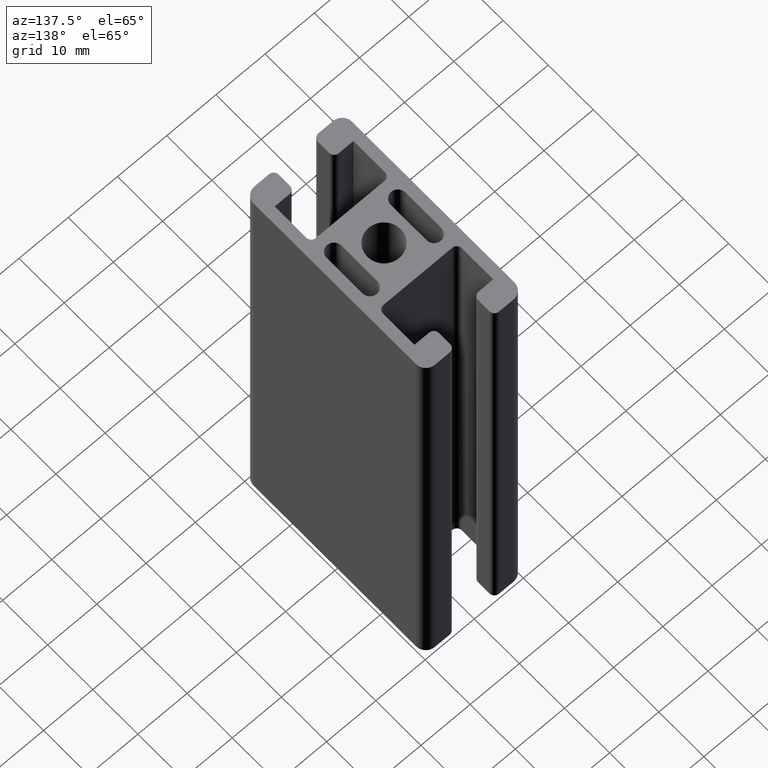
[diagram: clean part render]
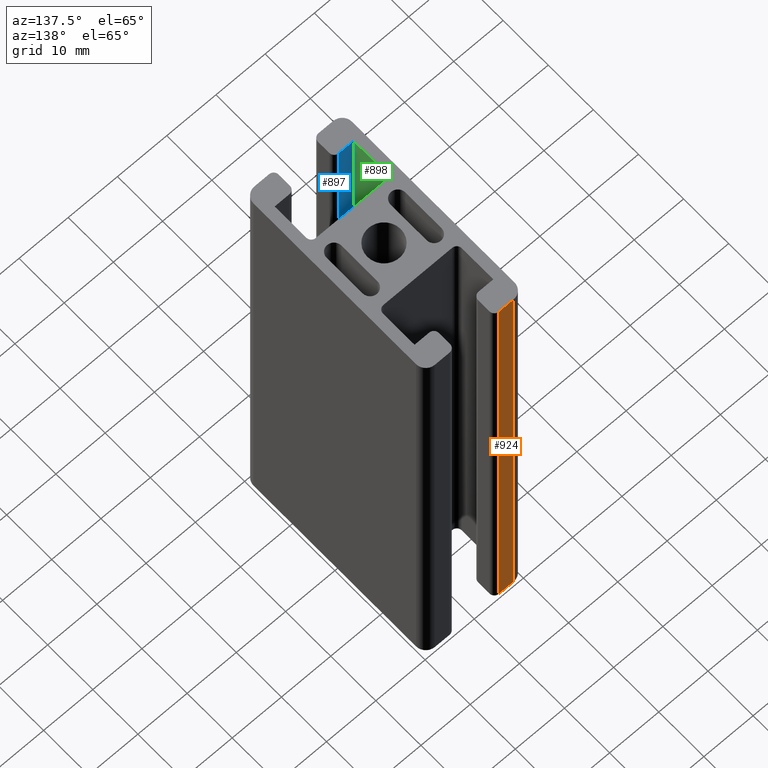
[diagram: same view with three faces highlighted in distinct colors, each labeled with its STEP entity id]
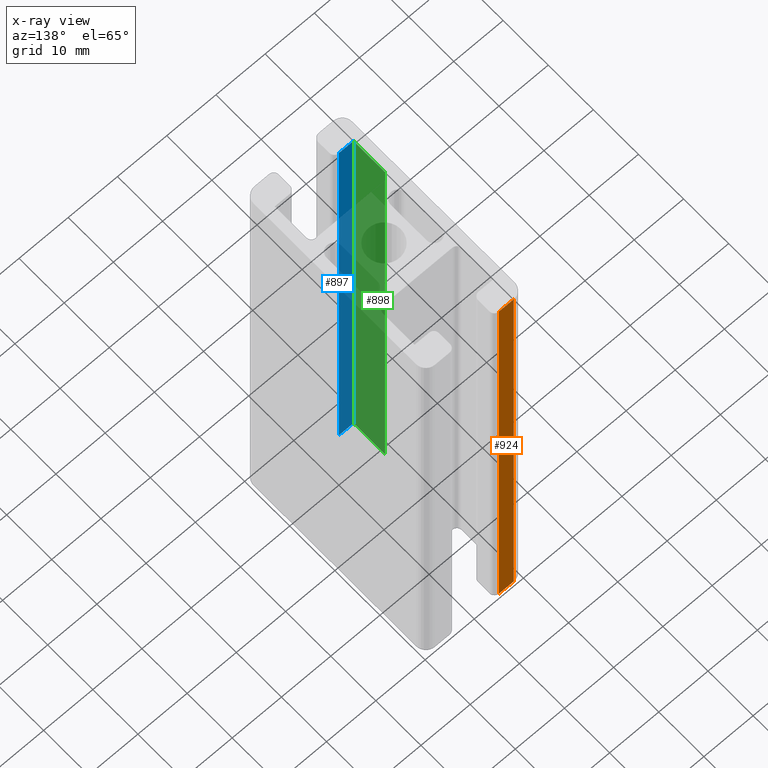
[diagram: x-ray of the same camera — body ghosted, the three highlighted faces saturated]
A machine part, auxiliary view with three faces highlighted in distinct colors.
The next image is the same camera in x-ray (body ghosted, the three faces saturated) — at least one of them is partly hidden behind the body in this view.
Their STEP definitions:

[orange] entity #924 — the highlighted planar face has unit normal (0, 1, 0).
#61=LINE('',#1444,#153);
#90=LINE('',#1522,#182);
#91=LINE('',#1524,#183);
#92=LINE('',#1525,#184);
#153=VECTOR('',#1168,100.);
#182=VECTOR('',#1245,3.00000199595298);
#183=VECTOR('',#1246,100.);
#184=VECTOR('',#1247,3.00000199595298);
#218=PLANE('',#1007);
#268=FACE_OUTER_BOUND('',#316,.T.);
#316=EDGE_LOOP('',(#741,#742,#743,#744));
#424=VERTEX_POINT('',#1438);
#426=VERTEX_POINT('',#1442);
#451=VERTEX_POINT('',#1521);
#452=VERTEX_POINT('',#1523);
#535=EDGE_CURVE('',#424,#426,#61,.T.);
#574=EDGE_CURVE('',#451,#426,#90,.T.);
#575=EDGE_CURVE('',#451,#452,#91,.T.);
#576=EDGE_CURVE('',#452,#424,#92,.T.);
#741=ORIENTED_EDGE('',*,*,#535,.T.);
#742=ORIENTED_EDGE('',*,*,#574,.F.);
#743=ORIENTED_EDGE('',*,*,#575,.T.);
#744=ORIENTED_EDGE('',*,*,#576,.T.);
#924=ADVANCED_FACE('',(#268),#218,.T.);
#1007=AXIS2_PLACEMENT_3D('',#1520,#1243,#1244);
#1168=DIRECTION('',(0.,0.,-1.));
#1243=DIRECTION('center_axis',(5.55111512312578E-16,1.,0.));
#1244=DIRECTION('ref_axis',(-1.,7.105427357601E-16,0.));
#1245=DIRECTION('',(1.,-5.55111512312578E-16,0.));
#1246=DIRECTION('',(0.,0.,1.));
#1247=DIRECTION('',(1.,-5.55111512312578E-16,0.));
#1438=CARTESIAN_POINT('',(-4.99999800404701,20.,100.));
#1442=CARTESIAN_POINT('',(-4.99999800404701,20.,0.));
#1444=CARTESIAN_POINT('',(-4.99999800404702,20.,0.));
#1520=CARTESIAN_POINT('Origin',(8.00000000000001,20.,0.));
#1521=CARTESIAN_POINT('',(-8.,20.,0.));
#1522=CARTESIAN_POINT('',(4.00000000000002,20.,0.));
#1523=CARTESIAN_POINT('',(-8.,20.,100.));
#1524=CARTESIAN_POINT('',(-8.,20.,0.));
#1525=CARTESIAN_POINT('',(4.00000000000002,20.,100.));

[blue] entity #897 — the highlighted planar face has unit normal (-0, -1, 0).
#32=LINE('',#1357,#124);
#33=LINE('',#1360,#125);
#34=LINE('',#1362,#126);
#35=LINE('',#1363,#127);
#124=VECTOR('',#1083,100.);
#125=VECTOR('',#1086,3.00000199595298);
#126=VECTOR('',#1087,3.00000199595298);
#127=VECTOR('',#1088,100.);
#203=PLANE('',#956);
#241=FACE_OUTER_BOUND('',#289,.T.);
#289=EDGE_LOOP('',(#633,#634,#635,#636));
#395=VERTEX_POINT('',#1353);
#396=VERTEX_POINT('',#1355);
#397=VERTEX_POINT('',#1359);
#398=VERTEX_POINT('',#1361);
#492=EDGE_CURVE('',#396,#395,#32,.T.);
#493=EDGE_CURVE('',#395,#397,#33,.T.);
#494=EDGE_CURVE('',#398,#396,#34,.T.);
#495=EDGE_CURVE('',#398,#397,#35,.T.);
#633=ORIENTED_EDGE('',*,*,#493,.F.);
#634=ORIENTED_EDGE('',*,*,#492,.F.);
#635=ORIENTED_EDGE('',*,*,#494,.F.);
#636=ORIENTED_EDGE('',*,*,#495,.T.);
#897=ADVANCED_FACE('',(#241),#203,.F.);
#956=AXIS2_PLACEMENT_3D('',#1358,#1084,#1085);
#1083=DIRECTION('',(0.,0.,1.));
#1084=DIRECTION('center_axis',(-7.40148190649775E-16,-1.,0.));
#1085=DIRECTION('ref_axis',(0.,0.,-1.));
#1086=DIRECTION('',(-1.,7.40148190649775E-16,0.));
#1087=DIRECTION('',(1.,-7.40148190649775E-16,0.));
#1088=DIRECTION('',(0.,0.,1.));
#1353=CARTESIAN_POINT('',(-4.99999800404702,-15.5,100.));
#1355=CARTESIAN_POINT('',(-4.99999800404702,-15.5,0.));
#1357=CARTESIAN_POINT('',(-4.99999800404702,-15.5,0.));
#1358=CARTESIAN_POINT('Origin',(-4.99999800404702,-15.5,0.));
#1359=CARTESIAN_POINT('',(-8.,-15.5,100.));
#1360=CARTESIAN_POINT('',(-2.49999900202351,-15.5,100.));
#1361=CARTESIAN_POINT('',(-8.,-15.5,0.));
#1362=CARTESIAN_POINT('',(-2.49999900202351,-15.5,0.));
#1363=CARTESIAN_POINT('',(-8.,-15.5,0.));

[green] entity #898 — the highlighted planar face has unit normal (-1, 0, 0).
#35=LINE('',#1363,#127);
#36=LINE('',#1366,#128);
#37=LINE('',#1368,#129);
#38=LINE('',#1369,#130);
#127=VECTOR('',#1088,100.);
#128=VECTOR('',#1091,7.00000199595285);
#129=VECTOR('',#1092,7.00000199595285);
#130=VECTOR('',#1093,100.);
#204=PLANE('',#957);
#242=FACE_OUTER_BOUND('',#290,.T.);
#290=EDGE_LOOP('',(#637,#638,#639,#640));
#397=VERTEX_POINT('',#1359);
#398=VERTEX_POINT('',#1361);
#399=VERTEX_POINT('',#1365);
#400=VERTEX_POINT('',#1367);
#495=EDGE_CURVE('',#398,#397,#35,.T.);
#496=EDGE_CURVE('',#397,#399,#36,.T.);
#497=EDGE_CURVE('',#400,#398,#37,.T.);
#498=EDGE_CURVE('',#400,#399,#38,.T.);
#637=ORIENTED_EDGE('',*,*,#496,.F.);
#638=ORIENTED_EDGE('',*,*,#495,.F.);
#639=ORIENTED_EDGE('',*,*,#497,.F.);
#640=ORIENTED_EDGE('',*,*,#498,.T.);
#898=ADVANCED_FACE('',(#242),#204,.F.);
#957=AXIS2_PLACEMENT_3D('',#1364,#1089,#1090);
#1088=DIRECTION('',(0.,0.,1.));
#1089=DIRECTION('center_axis',(-1.,0.,0.));
#1090=DIRECTION('ref_axis',(0.,0.,1.));
#1091=DIRECTION('',(0.,1.,0.));
#1092=DIRECTION('',(0.,-1.,0.));
#1093=DIRECTION('',(0.,0.,1.));
#1359=CARTESIAN_POINT('',(-8.,-15.5,100.));
#1361=CARTESIAN_POINT('',(-8.,-15.5,0.));
#1363=CARTESIAN_POINT('',(-8.,-15.5,0.));
#1364=CARTESIAN_POINT('Origin',(-8.,-15.5,0.));
#1365=CARTESIAN_POINT('',(-8.,-8.49999800404715,100.));
#1366=CARTESIAN_POINT('',(-8.,-7.75,100.));
#1367=CARTESIAN_POINT('',(-8.,-8.49999800404715,0.));
#1368=CARTESIAN_POINT('',(-8.,-7.75,0.));
#1369=CARTESIAN_POINT('',(-8.,-8.49999800404715,0.));